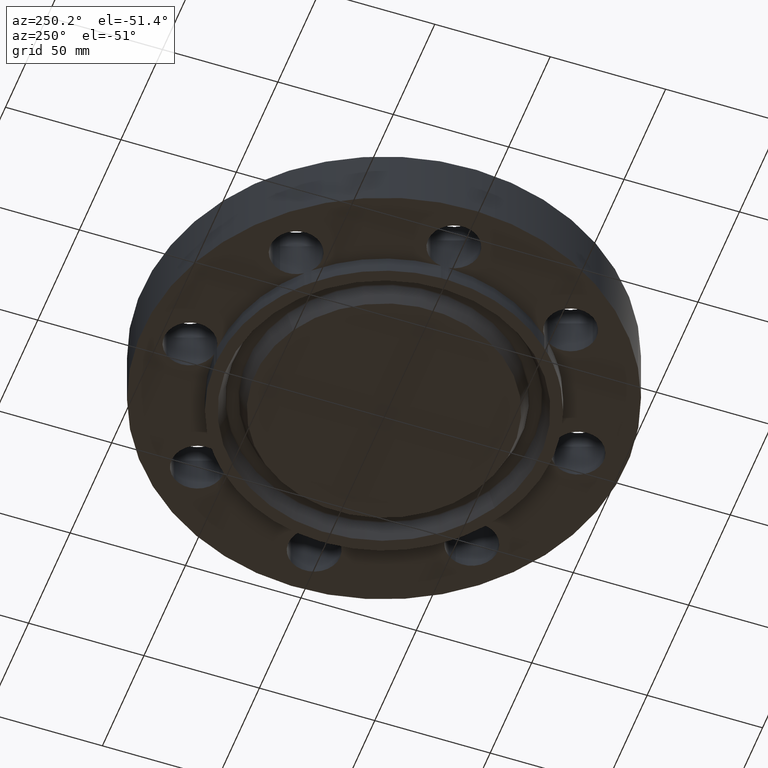
[diagram: clean part render]
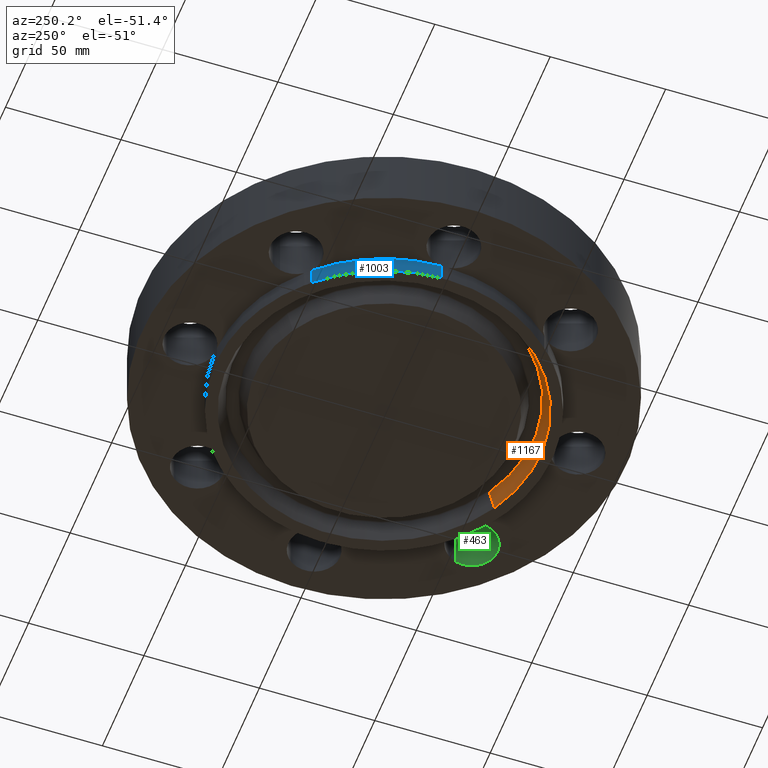
[diagram: same view with three faces highlighted in distinct colors, each labeled with its STEP entity id]
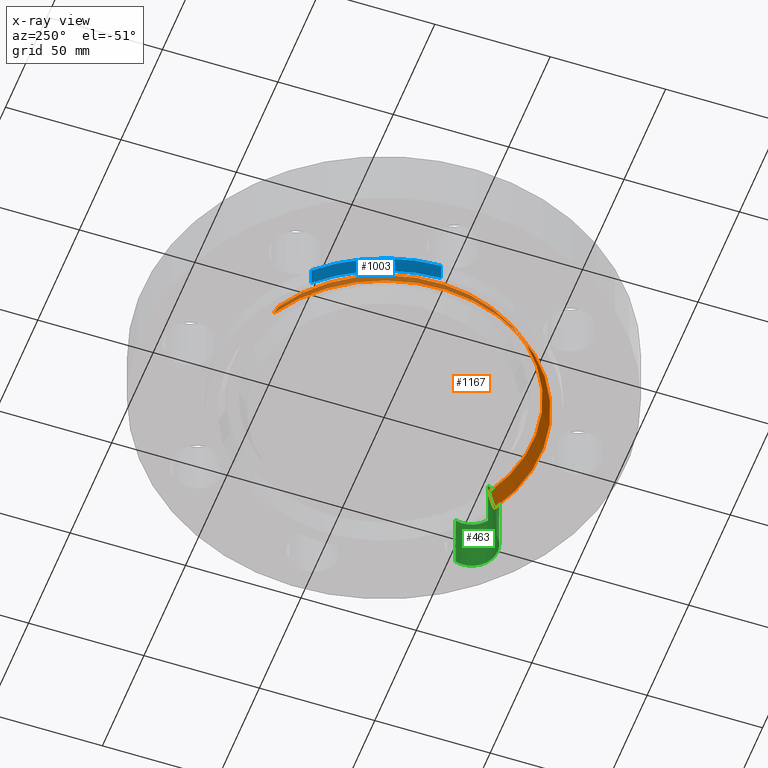
[diagram: x-ray of the same camera — body ghosted, the three highlighted faces saturated]
A machine part, auxiliary view with three faces highlighted in distinct colors.
The next image is the same camera in x-ray (body ghosted, the three faces saturated) — at least one of them is partly hidden behind the body in this view.
Their STEP definitions:

[orange] entity #1167 — the highlighted conical surface has half-angle 23 deg.
#207=AXIS2_PLACEMENT_3D('Circle Axis2P3D',#205,#206,$) ;
#1113=AXIS2_PLACEMENT_3D('Circle Axis2P3D',#1111,#1112,$) ;
#1149=AXIS2_PLACEMENT_3D('Cone Axis2P3D',#1146,#1147,#1148) ;
#205=CARTESIAN_POINT('Axis2P3D Location',(2.79741234551E-016,8.39223703654E-016,-0.312500000001)) ;
#209=CARTESIAN_POINT('Vertex',(1.2809770966,-2.34481284712,-0.312500000001)) ;
#211=CARTESIAN_POINT('Vertex',(-1.2809770966,2.34481284712,-0.312500000001)) ;
#1111=CARTESIAN_POINT('Axis2P3D Location',(0.,0.,-0.0190701156784)) ;
#1115=CARTESIAN_POINT('Vertex',(-1.22126292165,2.23550678306,-0.0190701156784)) ;
#1117=CARTESIAN_POINT('Vertex',(1.22126292165,-2.23550678306,-0.0190701156784)) ;
#1146=CARTESIAN_POINT('Axis2P3D Location',(0.,0.,-0.0190701156784)) ;
#1151=CARTESIAN_POINT('Line Origine',(-1.25112000913,2.29015981509,-0.16578505784)) ;
#1156=CARTESIAN_POINT('Line Origine',(1.25112000913,-2.29015981509,-0.16578505784)) ;
#206=DIRECTION('Axis2P3D Direction',(0.,0.,-0.0393700787402)) ;
#1112=DIRECTION('Axis2P3D Direction',(0.,0.,0.0393700787402)) ;
#1147=DIRECTION('Axis2P3D Direction',(-0.,-0.,-0.0393700787402)) ;
#1148=DIRECTION('Axis2P3D XDirection',(-0.0188750212049,0.0345504945626,0.)) ;
#1152=DIRECTION('Vector Direction',(-0.00737505833565,0.0134999537303,-0.0362403485611)) ;
#1157=DIRECTION('Vector Direction',(0.00737505833565,-0.0134999537303,-0.0362403485611)) ;
#1153=VECTOR('Line Direction',#1152,0.0393700787402) ;
#1158=VECTOR('Line Direction',#1157,0.0393700787402) ;
#1162=ORIENTED_EDGE('',*,*,#213,.T.) ;
#1163=ORIENTED_EDGE('',*,*,#1155,.T.) ;
#1164=ORIENTED_EDGE('',*,*,#1119,.T.) ;
#1165=ORIENTED_EDGE('',*,*,#1160,.F.) ;
#1167=ADVANCED_FACE('PartBody',(#1166),#1150,.F.) ;
#208=CIRCLE('generated circle',#207,2.67190000001) ;
#1114=CIRCLE('generated circle',#1113,2.54734640379) ;
#1150=CONICAL_SURFACE('Cone',#1149,2.54734640379,0.401425727959) ;
#213=EDGE_CURVE('',#210,#212,#208,.T.) ;
#1119=EDGE_CURVE('',#1116,#1118,#1114,.T.) ;
#1155=EDGE_CURVE('',#212,#1116,#1154,.F.) ;
#1160=EDGE_CURVE('',#210,#1118,#1159,.F.) ;
#1161=EDGE_LOOP('',(#1162,#1163,#1164,#1165)) ;
#1166=FACE_OUTER_BOUND('',#1161,.T.) ;
#1154=LINE('Line',#1151,#1153) ;
#1159=LINE('Line',#1156,#1158) ;
#210=VERTEX_POINT('',#209) ;
#212=VERTEX_POINT('',#211) ;
#1116=VERTEX_POINT('',#1115) ;
#1118=VERTEX_POINT('',#1117) ;

[blue] entity #1003 — the highlighted cylindrical surface (partial cylindrical patch) has radius 73.025 mm, axis along (0, 0, -1).
#140=AXIS2_PLACEMENT_3D('Circle Axis2P3D',#138,#139,$) ;
#859=AXIS2_PLACEMENT_3D('Circle Axis2P3D',#857,#858,$) ;
#924=AXIS2_PLACEMENT_3D('Cylinder Axis2P3D',#921,#922,#923) ;
#135=CARTESIAN_POINT('Vertex',(-2.87433912388,0.0616409036851,-0.312500000001)) ;
#138=CARTESIAN_POINT('Axis2P3D Location',(0.,0.,-0.312500000001)) ;
#142=CARTESIAN_POINT('Vertex',(-2.07605138692,1.98887798493,-0.312500000001)) ;
#250=CARTESIAN_POINT('Line Origine',(-2.07605138692,1.98887798493,0.530000000002)) ;
#254=CARTESIAN_POINT('Vertex',(-2.07605138692,1.98887798493,2.79741234551E-016)) ;
#562=CARTESIAN_POINT('Vertex',(-2.87433912388,0.0616409036851,2.79741234551E-016)) ;
#565=CARTESIAN_POINT('Line Origine',(-2.87433912388,0.0616409036851,0.530000000002)) ;
#857=CARTESIAN_POINT('Axis2P3D Location',(0.,0.,0.)) ;
#921=CARTESIAN_POINT('Axis2P3D Location',(0.,0.,0.373750000001)) ;
#139=DIRECTION('Axis2P3D Direction',(0.,0.,-0.0393700787402)) ;
#251=DIRECTION('Vector Direction',(0.,0.,-0.0393700787402)) ;
#566=DIRECTION('Vector Direction',(0.,0.,-0.0393700787402)) ;
#858=DIRECTION('Axis2P3D Direction',(0.,0.,-0.0393700787402)) ;
#922=DIRECTION('Axis2P3D Direction',(0.,0.,-0.0393700787402)) ;
#923=DIRECTION('Axis2P3D XDirection',(0.000844106863196,0.0393610287418,0.)) ;
#252=VECTOR('Line Direction',#251,0.0393700787402) ;
#567=VECTOR('Line Direction',#566,0.0393700787402) ;
#998=ORIENTED_EDGE('',*,*,#144,.F.) ;
#999=ORIENTED_EDGE('',*,*,#569,.F.) ;
#1000=ORIENTED_EDGE('',*,*,#861,.T.) ;
#1001=ORIENTED_EDGE('',*,*,#256,.T.) ;
#1003=ADVANCED_FACE('PartBody',(#1002),#925,.T.) ;
#141=CIRCLE('generated circle',#140,2.87500000001) ;
#860=CIRCLE('generated circle',#859,2.87500000001) ;
#925=CYLINDRICAL_SURFACE('generated cylinder',#924,2.87500000001) ;
#144=EDGE_CURVE('',#136,#143,#141,.T.) ;
#256=EDGE_CURVE('',#255,#143,#253,.T.) ;
#569=EDGE_CURVE('',#563,#136,#568,.T.) ;
#861=EDGE_CURVE('',#563,#255,#860,.T.) ;
#997=EDGE_LOOP('',(#998,#999,#1000,#1001)) ;
#1002=FACE_OUTER_BOUND('',#997,.T.) ;
#253=LINE('Line',#250,#252) ;
#568=LINE('Line',#565,#567) ;
#136=VERTEX_POINT('',#135) ;
#143=VERTEX_POINT('',#142) ;
#255=VERTEX_POINT('',#254) ;
#563=VERTEX_POINT('',#562) ;

[green] entity #463 — the highlighted cylindrical surface (edge-blend (fillet) strip) has radius 11.176 mm, axis along (-0, 0, -1).
#387=AXIS2_PLACEMENT_3D('Cylinder Axis2P3D',#384,#385,#386) ;
#449=AXIS2_PLACEMENT_3D('Circle Axis2P3D',#447,#448,$) ;
#454=AXIS2_PLACEMENT_3D('Circle Axis2P3D',#452,#453,$) ;
#384=CARTESIAN_POINT('Axis2P3D Location',(2.34052344574,-2.34052344574,1.05606299213)) ;
#389=CARTESIAN_POINT('Line Origine',(1.91832160854,-2.46440083944,0.530000000002)) ;
#393=CARTESIAN_POINT('Vertex',(1.91832160854,-2.46440083944,1.39870617276E-016)) ;
#395=CARTESIAN_POINT('Vertex',(1.91832160854,-2.46440083944,1.06)) ;
#421=CARTESIAN_POINT('Vertex',(2.76272528293,-2.21664605203,0.)) ;
#424=CARTESIAN_POINT('Line Origine',(2.76272528293,-2.21664605203,0.530000000002)) ;
#428=CARTESIAN_POINT('Vertex',(2.76272528293,-2.21664605203,1.06)) ;
#447=CARTESIAN_POINT('Axis2P3D Location',(2.34052344574,-2.34052344574,0.)) ;
#452=CARTESIAN_POINT('Axis2P3D Location',(2.34052344574,-2.34052344574,1.06)) ;
#385=DIRECTION('Axis2P3D Direction',(-0.,0.,-0.0393700787402)) ;
#386=DIRECTION('Axis2P3D XDirection',(0.0377775444876,0.0110842335096,-0.)) ;
#390=DIRECTION('Vector Direction',(0.,0.,-0.0393700787402)) ;
#425=DIRECTION('Vector Direction',(0.,0.,-0.0393700787402)) ;
#448=DIRECTION('Axis2P3D Direction',(-0.,0.,-0.0393700787402)) ;
#453=DIRECTION('Axis2P3D Direction',(-0.,0.,-0.0393700787402)) ;
#391=VECTOR('Line Direction',#390,0.0393700787402) ;
#426=VECTOR('Line Direction',#425,0.0393700787402) ;
#458=ORIENTED_EDGE('',*,*,#430,.F.) ;
#459=ORIENTED_EDGE('',*,*,#451,.T.) ;
#460=ORIENTED_EDGE('',*,*,#397,.T.) ;
#461=ORIENTED_EDGE('',*,*,#456,.F.) ;
#463=ADVANCED_FACE('PartBody',(#462),#388,.F.) ;
#450=CIRCLE('generated circle',#449,0.440000000002) ;
#455=CIRCLE('generated circle',#454,0.440000000002) ;
#388=CYLINDRICAL_SURFACE('generated cylinder',#387,0.440000000002) ;
#397=EDGE_CURVE('',#394,#396,#392,.F.) ;
#430=EDGE_CURVE('',#422,#429,#427,.F.) ;
#451=EDGE_CURVE('',#422,#394,#450,.T.) ;
#456=EDGE_CURVE('',#429,#396,#455,.T.) ;
#457=EDGE_LOOP('',(#458,#459,#460,#461)) ;
#462=FACE_OUTER_BOUND('',#457,.T.) ;
#392=LINE('Line',#389,#391) ;
#427=LINE('Line',#424,#426) ;
#394=VERTEX_POINT('',#393) ;
#396=VERTEX_POINT('',#395) ;
#422=VERTEX_POINT('',#421) ;
#429=VERTEX_POINT('',#428) ;